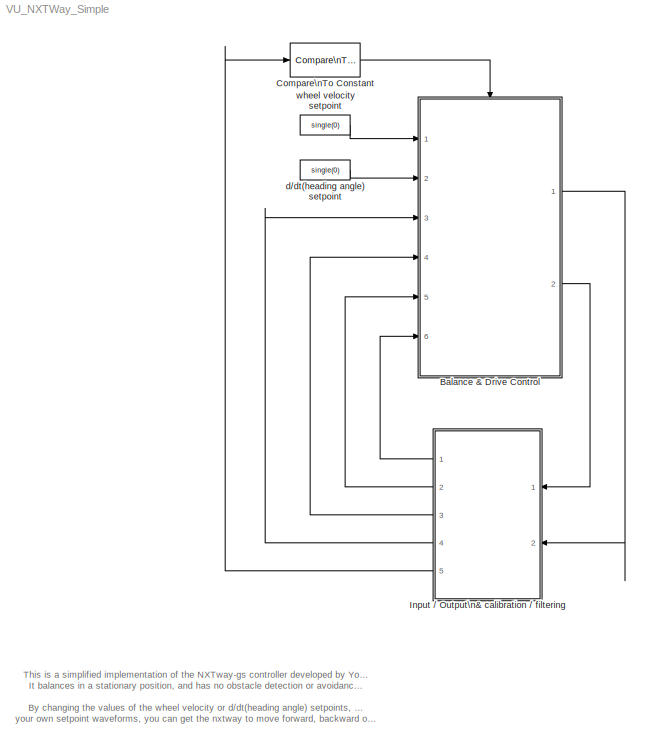
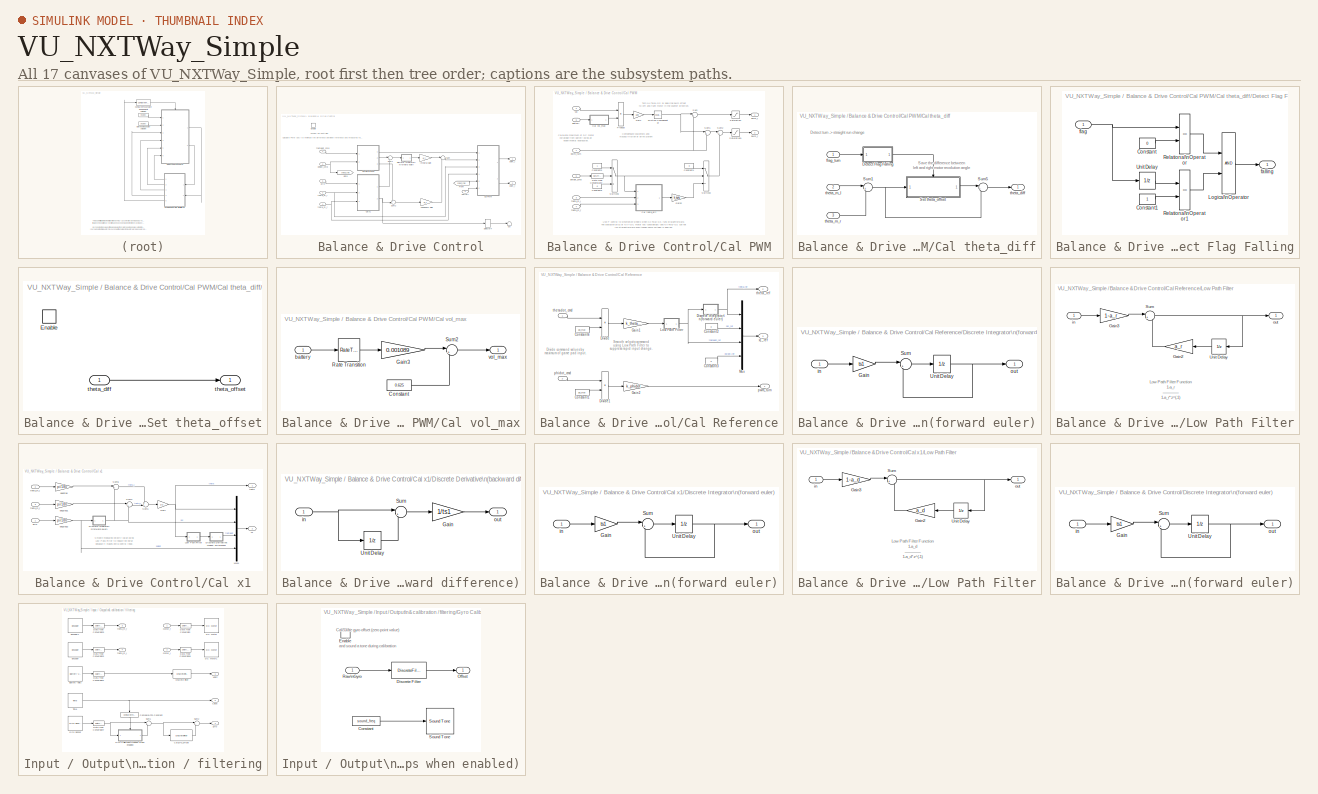
[diagram: thumbnail index - all 17 canvases of the model, root first then tree order]
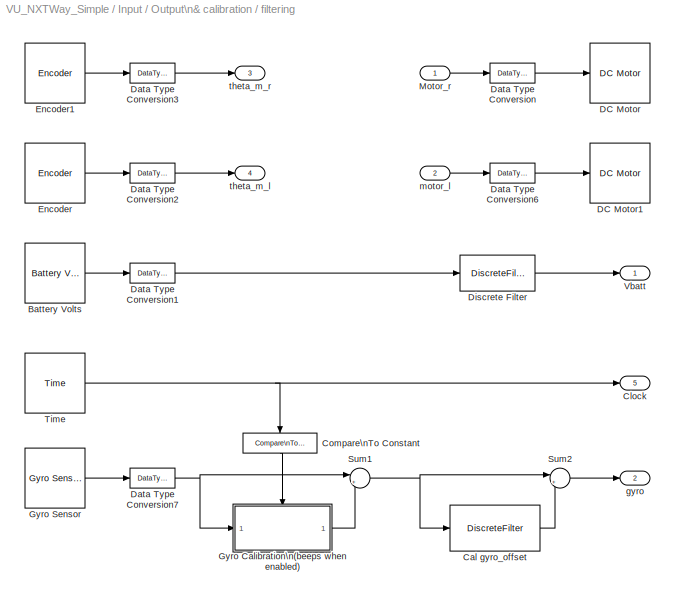
MODEL VU_NXTWay_Simple
KIND model
CONFIG PreLoadFcn = param_plant, param_controller
BLOCK [SubSystem] Balance & Drive Control
  FunctionWithSeparateData = off
  MaskHideContents = off
  MinAlgLoopOccurrences = off
  Opaque = off
  Ports = [6, 2, 1]
  PropExecContextOutsideSubsystem = off
  RTWSystemCode = Auto
  RequestExecContextInheritance = off
  SID = 1
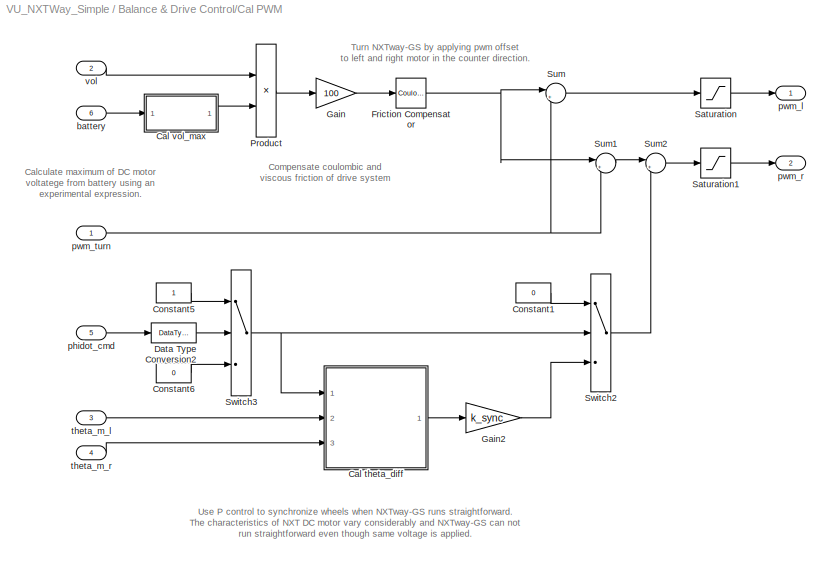
BLOCK [SubSystem] Balance & Drive Control/Cal PWM
  FunctionWithSeparateData = off
  MaskHideContents = off
  MinAlgLoopOccurrences = off
  Opaque = off
  Ports = [6, 2]
  PropExecContextOutsideSubsystem = off
  RTWSystemCode = Auto
  RequestExecContextInheritance = off
  SID = 514
BLOCK [SubSystem] Balance & Drive Control/Cal PWM/Cal theta_diff
  FunctionWithSeparateData = off
  MaskHideContents = off
  MinAlgLoopOccurrences = off
  Opaque = off
  Ports = [3, 1]
  PropExecContextOutsideSubsystem = off
  RTWSystemCode = Auto
  RequestExecContextInheritance = off
  SID = 521
BLOCK [SubSystem] Balance & Drive Control/Cal PWM/Cal theta_diff/Detect Flag Falling
  FunctionWithSeparateData = off
  MaskHideContents = off
  MinAlgLoopOccurrences = off
  Opaque = off
  Ports = [1, 1]
  PropExecContextOutsideSubsystem = off
  RTWSystemCode = Auto
  RequestExecContextInheritance = off
  SID = 525
BLOCK [Constant] Balance & Drive Control/Cal PWM/Cal theta_diff/Detect Flag Falling/Constant
  AttributesFormatString = DataType = %<OutDataTypeStr>
  OutDataType = FIXDT
  OutDataTypeMode = boolean
  OutDataTypeStr = boolean
  OutScaling = 2^0
  SID = 527
  SampleTime = ts1
  Value = 0
  VectorParams1D = off
BLOCK [Constant] Balance & Drive Control/Cal PWM/Cal theta_diff/Detect Flag Falling/Constant1
  AttributesFormatString = DataType = %<OutDataTypeStr>
  OutDataType = FIXDT
  OutDataTypeMode = boolean
  OutDataTypeStr = boolean
  OutScaling = 2^0
  SID = 528
  SampleTime = ts1
  VectorParams1D = off
BLOCK [Logic] Balance & Drive Control/Cal PWM/Cal theta_diff/Detect Flag Falling/Logical\nOperator
  AllPortsSameDT = off
  OutDataTypeMode = boolean
  OutDataTypeStr = boolean
  Ports = [2, 1]
  SID = 529
BLOCK [RelationalOperator] Balance & Drive Control/Cal PWM/Cal theta_diff/Detect Flag Falling/Relational\nOperator
  InputSameDT = off
  LogicOutDataTypeMode = boolean
  Operator = ==
  OutDataTypeStr = boolean
  Ports = [2, 1]
  SID = 530
BLOCK [RelationalOperator] Balance & Drive Control/Cal PWM/Cal theta_diff/Detect Flag Falling/Relational\nOperator1
  InputSameDT = off
  LogicOutDataTypeMode = boolean
  Operator = ==
  OutDataTypeStr = boolean
  Ports = [2, 1]
  SID = 531
BLOCK [UnitDelay] Balance & Drive Control/Cal PWM/Cal theta_diff/Detect Flag Falling/Unit Delay
  SID = 532
  SampleTime = -1
BLOCK [Outport] Balance & Drive Control/Cal PWM/Cal theta_diff/Detect Flag Falling/falling
  IconDisplay = Port number
  OutDataType = sfix(16)
  OutScaling = 2^0
  SID = 533
BLOCK [Inport] Balance & Drive Control/Cal PWM/Cal theta_diff/Detect Flag Falling/flag
  IconDisplay = Port number
  OutDataType = sfix(16)
  OutScaling = 2^0
  SID = 526
BLOCK [SubSystem] Balance & Drive Control/Cal PWM/Cal theta_diff/Set theta_offset
  FunctionWithSeparateData = off
  MaskHideContents = off
  MinAlgLoopOccurrences = off
  Opaque = off
  Ports = [1, 1, 1]
  PropExecContextOutsideSubsystem = off
  RTWSystemCode = Auto
  RequestExecContextInheritance = off
  SID = 534
BLOCK [EnablePort] Balance & Drive Control/Cal PWM/Cal theta_diff/Set theta_offset/Enable
  Ports = []
  SID = 536
BLOCK [Inport] Balance & Drive Control/Cal PWM/Cal theta_diff/Set theta_offset/theta_diff
  IconDisplay = Port number
  SID = 535
BLOCK [Outport] Balance & Drive Control/Cal PWM/Cal theta_diff/Set theta_offset/theta_offset
  IconDisplay = Port number
  SID = 537
BLOCK [Sum] Balance & Drive Control/Cal PWM/Cal theta_diff/Sum1
  IconShape = round
  InputSameDT = off
  Inputs = |+-
  OutDataType = sfix(16)
  OutScaling = 2^0
  Ports = [2, 1]
  SID = 538
  SaturateOnIntegerOverflow = off
BLOCK [Sum] Balance & Drive Control/Cal PWM/Cal theta_diff/Sum5
  IconShape = round
  InputSameDT = off
  Inputs = |-+
  OutDataType = sfix(16)
  OutScaling = 2^0
  Ports = [2, 1]
  SID = 539
  SaturateOnIntegerOverflow = off
BLOCK [Inport] Balance & Drive Control/Cal PWM/Cal theta_diff/flag_turn
  IconDisplay = Port number
  SID = 522
BLOCK [Outport] Balance & Drive Control/Cal PWM/Cal theta_diff/theta_diff
  IconDisplay = Port number
  SID = 540
BLOCK [Inport] Balance & Drive Control/Cal PWM/Cal theta_diff/theta_m_l
  IconDisplay = Port number
  Port = 2
  SID = 523
BLOCK [Inport] Balance & Drive Control/Cal PWM/Cal theta_diff/theta_m_r
  IconDisplay = Port number
  Port = 3
  SID = 524
BLOCK [SubSystem] Balance & Drive Control/Cal PWM/Cal vol_max
  FunctionWithSeparateData = off
  MaskHideContents = off
  MinAlgLoopOccurrences = off
  Opaque = off
  Ports = [1, 1]
  PropExecContextOutsideSubsystem = off
  RTWSystemCode = Auto
  RequestExecContextInheritance = off
  SID = 541
BLOCK [Constant] Balance & Drive Control/Cal PWM/Cal vol_max/Constant
  AttributesFormatString = DataType = %<OutDataTypeStr>
  OutDataType = sfix(16)
  OutDataTypeMode = single
  OutDataTypeStr = single
  OutScaling = 2^0
  SID = 543
  SampleTime = ts1
  Value = 0.625
BLOCK [Gain] Balance & Drive Control/Cal PWM/Cal vol_max/Gain3
  Gain = 0.001089
  OutDataType = sfix(16)
  OutScaling = 2^0
  ParameterDataType = sfix(16)
  ParameterScaling = 2^0
  SID = 544
  SampleTime = ts1
  SaturateOnIntegerOverflow = off
BLOCK [RateTransition] Balance & Drive Control/Cal PWM/Cal vol_max/Rate Transition
  OutPortSampleTimeOpt = Inherit
  SID = 644
BLOCK [Sum] Balance & Drive Control/Cal PWM/Cal vol_max/Sum2
  IconShape = round
  InputSameDT = off
  Inputs = |+-
  OutDataType = sfix(16)
  OutScaling = 2^0
  Ports = [2, 1]
  SID = 545
  SaturateOnIntegerOverflow = off
BLOCK [Inport] Balance & Drive Control/Cal PWM/Cal vol_max/battery
  IconDisplay = Port number
  SID = 542
BLOCK [Outport] Balance & Drive Control/Cal PWM/Cal vol_max/vol_max
  IconDisplay = Port number
  SID = 546
BLOCK [Constant] Balance & Drive Control/Cal PWM/Constant1
  AttributesFormatString = DataType = %<OutDataTypeStr>
  OutDataType = sfix(16)
  OutDataTypeMode = single
  OutDataTypeStr = single
  OutScaling = 2^0
  SID = 547
  SampleTime = ts1
  Value = 0
BLOCK [Constant] Balance & Drive Control/Cal PWM/Constant5
  AttributesFormatString = DataType = %<OutDataTypeStr>
  OutDataType = sfix(16)
  OutDataTypeMode = boolean
  OutDataTypeStr = boolean
  OutScaling = 2^0
  SID = 548
  SampleTime = ts1
BLOCK [Constant] Balance & Drive Control/Cal PWM/Constant6
  AttributesFormatString = DataType = %<OutDataTypeStr>
  OutDataType = sfix(16)
  OutDataTypeMode = boolean
  OutDataTypeStr = boolean
  OutScaling = 2^0
  SID = 549
  SampleTime = ts1
  Value = 0
BLOCK [DataTypeConversion] Balance & Drive Control/Cal PWM/Data Type Conversion2
  AttributesFormatString = Round = %<RndMeth>
  OutDataType = sfix(16)
  OutDataTypeMode = int8
  OutDataTypeStr = int8
  OutScaling = 2^0
  RndMeth = Simplest
  SID = 550
  SaturateOnIntegerOverflow = off
BLOCK [Reference] Balance & Drive Control/Cal PWM/Friction Compensator  REF=simulink/Discontinuities/Coulomb &\nViscous Friction
  AttributesFormatString = gain = %<gain>\\noffset = %<offset>
  FunctionWithSeparateData = off
  Ports = [1, 1]
  RTWMemSecDataConstants = Inherit from model
  RTWMemSecDataInternal = Inherit from model
  RTWMemSecDataParameters = Inherit from model
  RTWMemSecFuncExecute = Inherit from model
  RTWMemSecFuncInitTerm = Inherit from model
  SID = 551
  ShowPortLabels = FromPortIcon
  SourceBlock = simulink/Discontinuities/Coulomb &\nViscous Friction
  SourceType = Coulombic and Viscous Friction
  SystemSampleTime = -1
  gain = pwm_gain
  offset = pwm_offset
BLOCK [Gain] Balance & Drive Control/Cal PWM/Gain
  Gain = 100
  OutDataType = sfix(16)
  OutScaling = 2^0
  ParameterDataType = sfix(16)
  ParameterScaling = 2^0
  SID = 552
  SaturateOnIntegerOverflow = off
BLOCK [Gain] Balance & Drive Control/Cal PWM/Gain2
  Gain = k_sync
  OutDataType = sfix(16)
  OutScaling = 2^0
  ParameterDataType = sfix(16)
  ParameterScaling = 2^0
  SID = 553
  SaturateOnIntegerOverflow = off
BLOCK [Product] Balance & Drive Control/Cal PWM/Product
  InputSameDT = off
  Inputs = */
  OutDataType = sfix(16)
  OutScaling = 2^0
  Ports = [2, 1]
  RndMeth = Simplest
  SID = 554
  SaturateOnIntegerOverflow = off
BLOCK [Saturate] Balance & Drive Control/Cal PWM/Saturation
  AttributesFormatString = max = %<UpperLimit>\\nmin = %<LowerLimit>
  LowerLimit = -100
  Ports = [1, 1]
  SID = 555
  UpperLimit = 100
BLOCK [Saturate] Balance & Drive Control/Cal PWM/Saturation1
  AttributesFormatString = max = %<UpperLimit>\\nmin = %<LowerLimit>
  LowerLimit = -100
  Ports = [1, 1]
  SID = 556
  UpperLimit = 100
BLOCK [Sum] Balance & Drive Control/Cal PWM/Sum
  IconShape = round
  InputSameDT = off
  Inputs = |++
  OutDataType = sfix(16)
  OutScaling = 2^0
  Ports = [2, 1]
  SID = 557
  SaturateOnIntegerOverflow = off
BLOCK [Sum] Balance & Drive Control/Cal PWM/Sum1
  IconShape = round
  InputSameDT = off
  Inputs = |+-
  OutDataType = sfix(16)
  OutScaling = 2^0
  Ports = [2, 1]
  SID = 558
  SaturateOnIntegerOverflow = off
BLOCK [Sum] Balance & Drive Control/Cal PWM/Sum2
  IconShape = round
  InputSameDT = off
  Inputs = |++
  OutDataType = sfix(16)
  OutScaling = 2^0
  Ports = [2, 1]
  SID = 559
  SaturateOnIntegerOverflow = off
BLOCK [Switch] Balance & Drive Control/Cal PWM/Switch2
  Criteria = u2 ~= 0
  InputSameDT = off
  OutDataType = sfix(16)
  OutScaling = 2^0
  SID = 560
  SaturateOnIntegerOverflow = off
BLOCK [Switch] Balance & Drive Control/Cal PWM/Switch3
  Criteria = u2 ~= 0
  InputSameDT = off
  OutDataType = sfix(16)
  OutScaling = 2^0
  SID = 561
  SaturateOnIntegerOverflow = off
BLOCK [Inport] Balance & Drive Control/Cal PWM/battery
  IconDisplay = Port number
  OutDataType = sfix(16)
  OutScaling = 2^0
  Port = 6
  SID = 520
BLOCK [Inport] Balance & Drive Control/Cal PWM/phidot_cmd
  IconDisplay = Port number
  Port = 5
  SID = 519
BLOCK [Outport] Balance & Drive Control/Cal PWM/pwm_l
  IconDisplay = Port number
  OutDataType = sfix(16)
  OutScaling = 2^0
  SID = 562
BLOCK [Outport] Balance & Drive Control/Cal PWM/pwm_r
  IconDisplay = Port number
  OutDataType = sfix(16)
  OutScaling = 2^0
  Port = 2
  SID = 563
BLOCK [Inport] Balance & Drive Control/Cal PWM/pwm_turn
  IconDisplay = Port number
  SID = 515
BLOCK [Inport] Balance & Drive Control/Cal PWM/theta_m_l
  IconDisplay = Port number
  OutDataType = sfix(16)
  OutScaling = 2^0
  Port = 3
  SID = 517
BLOCK [Inport] Balance & Drive Control/Cal PWM/theta_m_r
  IconDisplay = Port number
  OutDataType = sfix(16)
  OutScaling = 2^0
  Port = 4
  SID = 518
BLOCK [Inport] Balance & Drive Control/Cal PWM/vol
  IconDisplay = Port number
  OutDataType = sfix(16)
  OutScaling = 2^0
  Port = 2
  SID = 516
BLOCK [SubSystem] Balance & Drive Control/Cal Reference
  FunctionWithSeparateData = off
  MaskHideContents = off
  MinAlgLoopOccurrences = off
  Opaque = off
  Ports = [2, 3]
  PropExecContextOutsideSubsystem = off
  RTWSystemCode = Auto
  RequestExecContextInheritance = off
  SID = 564
BLOCK [Constant] Balance & Drive Control/Cal Reference/Constant1
  AttributesFormatString = DataType = %<OutDataTypeStr>
  OutDataType = FIXDT
  OutDataTypeMode = int8
  OutDataTypeStr = int8
  OutScaling = 2^0
  SID = 567
  SampleTime = ts1
  Value = gp_max
  VectorParams1D = off
BLOCK [Constant] Balance & Drive Control/Cal Reference/Constant2
  AttributesFormatString = DataType = %<OutDataTypeStr>
  OutDataType = FIXDT
  OutDataTypeMode = single
  OutDataTypeStr = single
  OutScaling = 2^0
  SID = 568
  SampleTime = ts1
  Value = 0
  VectorParams1D = off
BLOCK [Constant] Balance & Drive Control/Cal Reference/Constant3
  AttributesFormatString = DataType = %<OutDataTypeStr>
  OutDataType = FIXDT
  OutDataTypeMode = single
  OutDataTypeStr = single
  OutScaling = 2^0
  SID = 569
  SampleTime = ts1
  Value = 0
  VectorParams1D = off
BLOCK [Constant] Balance & Drive Control/Cal Reference/Constant6
  AttributesFormatString = DataType = %<OutDataTypeStr>
  OutDataType = FIXDT
  OutDataTypeMode = int8
  OutDataTypeStr = int8
  OutScaling = 2^0
  SID = 570
  SampleTime = ts1
  Value = gp_max
  VectorParams1D = off
BLOCK [SubSystem] Balance & Drive Control/Cal Reference/Discrete Integrator\n(forward euler)
  FunctionWithSeparateData = off
  MaskHideContents = off
  MinAlgLoopOccurrences = off
  Opaque = off
  Ports = [1, 1]
  PropExecContextOutsideSubsystem = off
  RTWSystemCode = Auto
  RequestExecContextInheritance = off
  SID = 571
BLOCK [Gain] Balance & Drive Control/Cal Reference/Discrete Integrator\n(forward euler)/Gain
  Gain = ts1
  OutDataType = sfix(16)
  OutScaling = 2^0
  ParameterDataType = sfix(16)
  ParameterScaling = 2^0
  SID = 573
  SaturateOnIntegerOverflow = off
BLOCK [Sum] Balance & Drive Control/Cal Reference/Discrete Integrator\n(forward euler)/Sum
  IconShape = round
  InputSameDT = off
  Inputs = |++
  OutDataType = sfix(16)
  OutScaling = 2^0
  Ports = [2, 1]
  SID = 574
  SaturateOnIntegerOverflow = off
BLOCK [UnitDelay] Balance & Drive Control/Cal Reference/Discrete Integrator\n(forward euler)/Unit Delay
  SID = 575
  SampleTime = -1
BLOCK [Inport] Balance & Drive Control/Cal Reference/Discrete Integrator\n(forward euler)/in
  IconDisplay = Port number
  OutDataType = sfix(16)
  OutScaling = 2^0
  SID = 572
BLOCK [Outport] Balance & Drive Control/Cal Reference/Discrete Integrator\n(forward euler)/out
  IconDisplay = Port number
  OutDataType = sfix(16)
  OutScaling = 2^0
  SID = 576
BLOCK [Product] Balance & Drive Control/Cal Reference/Divide
  InputSameDT = off
  Inputs = */
  OutDataType = sfix(16)
  OutScaling = 2^-10
  Ports = [2, 1]
  RndMeth = Simplest
  SID = 577
  SaturateOnIntegerOverflow = off
BLOCK [Product] Balance & Drive Control/Cal Reference/Divide1
  InputSameDT = off
  Inputs = */
  OutDataType = sfix(16)
  OutScaling = 2^-10
  Ports = [2, 1]
  RndMeth = Simplest
  SID = 578
  SaturateOnIntegerOverflow = off
BLOCK [Gain] Balance & Drive Control/Cal Reference/Gain1
  Gain = k_thetadot
  OutDataType = sfix(16)
  OutScaling = 2^0
  ParameterDataType = sfix(16)
  ParameterScaling = 2^0
  SID = 579
  SaturateOnIntegerOverflow = off
BLOCK [Gain] Balance & Drive Control/Cal Reference/Gain2
  Gain = k_phidot
  OutDataType = sfix(16)
  OutScaling = 2^0
  ParameterDataType = sfix(16)
  ParameterScaling = 2^0
  SID = 580
  SaturateOnIntegerOverflow = off
BLOCK [SubSystem] Balance & Drive Control/Cal Reference/Low Path Filter
  FunctionWithSeparateData = off
  MaskHideContents = off
  MinAlgLoopOccurrences = off
  Opaque = off
  Ports = [1, 1]
  PropExecContextOutsideSubsystem = off
  RTWSystemCode = Auto
  RequestExecContextInheritance = off
  SID = 581
BLOCK [Gain] Balance & Drive Control/Cal Reference/Low Path Filter/Gain2
  Gain = a_r
  OutDataType = sfix(16)
  OutScaling = 2^0
  ParameterDataType = sfix(16)
  ParameterScaling = 2^0
  SID = 583
  SaturateOnIntegerOverflow = off
BLOCK [Gain] Balance & Drive Control/Cal Reference/Low Path Filter/Gain3
  Gain = 1-a_r
  OutDataType = sfix(16)
  OutScaling = 2^0
  ParameterDataType = sfix(16)
  ParameterScaling = 2^0
  SID = 584
  SaturateOnIntegerOverflow = off
BLOCK [Sum] Balance & Drive Control/Cal Reference/Low Path Filter/Sum
  IconShape = round
  InputSameDT = off
  Inputs = |++
  OutDataType = sfix(16)
  OutScaling = 2^0
  Ports = [2, 1]
  SID = 585
  SaturateOnIntegerOverflow = off
BLOCK [UnitDelay] Balance & Drive Control/Cal Reference/Low Path Filter/Unit Delay
  SID = 586
  SampleTime = -1
BLOCK [Inport] Balance & Drive Control/Cal Reference/Low Path Filter/in
  IconDisplay = Port number
  SID = 582
BLOCK [Outport] Balance & Drive Control/Cal Reference/Low Path Filter/out
  IconDisplay = Port number
  SID = 587
BLOCK [Mux] Balance & Drive Control/Cal Reference/Mux
  DisplayOption = bar
  Ports = [4, 1]
  SID = 588
BLOCK [Inport] Balance & Drive Control/Cal Reference/phidot_cmd
  IconDisplay = Port number
  Port = 2
  SID = 566
BLOCK [Outport] Balance & Drive Control/Cal Reference/pwm_turn
  IconDisplay = Port number
  SID = 589
BLOCK [Outport] Balance & Drive Control/Cal Reference/theta_ref
  IconDisplay = Port number
  Port = 2
  SID = 590
BLOCK [Inport] Balance & Drive Control/Cal Reference/thetadot_cmd
  IconDisplay = Port number
  SID = 565
BLOCK [Outport] Balance & Drive Control/Cal Reference/x1_ref
  IconDisplay = Port number
  Port = 3
  SID = 591
BLOCK [SubSystem] Balance & Drive Control/Cal x1
  FunctionWithSeparateData = off
  MaskHideContents = off
  MinAlgLoopOccurrences = off
  Opaque = off
  Ports = [3, 2]
  PropExecContextOutsideSubsystem = off
  RTWSystemCode = Auto
  RequestExecContextInheritance = off
  SID = 592
BLOCK [SubSystem] Balance & Drive Control/Cal x1/Discrete Derivative\n(backward difference)
  FunctionWithSeparateData = off
  MaskHideContents = off
  MinAlgLoopOccurrences = off
  Opaque = off
  Ports = [1, 1]
  PropExecContextOutsideSubsystem = off
  RTWSystemCode = Auto
  RequestExecContextInheritance = off
  SID = 596
BLOCK [Gain] Balance & Drive Control/Cal x1/Discrete Derivative\n(backward difference)/Gain
  Gain = 1/ts1
  OutDataType = sfix(16)
  OutScaling = 2^0
  ParameterDataType = sfix(16)
  ParameterScaling = 2^0
  SID = 598
  SaturateOnIntegerOverflow = off
BLOCK [Sum] Balance & Drive Control/Cal x1/Discrete Derivative\n(backward difference)/Sum
  IconShape = round
  InputSameDT = off
  Inputs = |+-
  OutDataType = sfix(16)
  OutScaling = 2^0
  Ports = [2, 1]
  SID = 599
  SaturateOnIntegerOverflow = off
BLOCK [UnitDelay] Balance & Drive Control/Cal x1/Discrete Derivative\n(backward difference)/Unit Delay
  SID = 600
  SampleTime = -1
BLOCK [Inport] Balance & Drive Control/Cal x1/Discrete Derivative\n(backward difference)/in
  IconDisplay = Port number
  OutDataType = sfix(16)
  OutScaling = 2^0
  SID = 597
BLOCK [Outport] Balance & Drive Control/Cal x1/Discrete Derivative\n(backward difference)/out
  IconDisplay = Port number
  OutDataType = sfix(16)
  OutScaling = 2^0
  SID = 601
BLOCK [SubSystem] Balance & Drive Control/Cal x1/Discrete Integrator\n(forward euler)
  FunctionWithSeparateData = off
  MaskHideContents = off
  MinAlgLoopOccurrences = off
  Opaque = off
  Ports = [1, 1]
  PropExecContextOutsideSubsystem = off
  RTWSystemCode = Auto
  RequestExecContextInheritance = off
  SID = 602
BLOCK [Gain] Balance & Drive Control/Cal x1/Discrete Integrator\n(forward euler)/Gain
  Gain = ts1
  OutDataType = sfix(16)
  OutScaling = 2^0
  ParameterDataType = sfix(16)
  ParameterScaling = 2^0
  SID = 604
  SaturateOnIntegerOverflow = off
BLOCK [Sum] Balance & Drive Control/Cal x1/Discrete Integrator\n(forward euler)/Sum
  IconShape = round
  InputSameDT = off
  Inputs = |++
  OutDataType = sfix(16)
  OutScaling = 2^0
  Ports = [2, 1]
  SID = 605
  SaturateOnIntegerOverflow = off
BLOCK [UnitDelay] Balance & Drive Control/Cal x1/Discrete Integrator\n(forward euler)/Unit Delay
  SID = 606
  SampleTime = -1
BLOCK [Inport] Balance & Drive Control/Cal x1/Discrete Integrator\n(forward euler)/in
  IconDisplay = Port number
  OutDataType = sfix(16)
  OutScaling = 2^0
  SID = 603
BLOCK [Outport] Balance & Drive Control/Cal x1/Discrete Integrator\n(forward euler)/out
  IconDisplay = Port number
  OutDataType = sfix(16)
  OutScaling = 2^0
  SID = 607
BLOCK [Gain] Balance & Drive Control/Cal x1/Gain
  Gain = 1/2
  OutDataType = sfix(16)
  OutScaling = 2^0
  ParameterDataType = sfix(16)
  ParameterScaling = 2^0
  SID = 608
  SaturateOnIntegerOverflow = off
BLOCK [SubSystem] Balance & Drive Control/Cal x1/Low Path Filter
  FunctionWithSeparateData = off
  MaskHideContents = off
  MinAlgLoopOccurrences = off
  Opaque = off
  Ports = [1, 1]
  PropExecContextOutsideSubsystem = off
  RTWSystemCode = Auto
  RequestExecContextInheritance = off
  SID = 609
BLOCK [Gain] Balance & Drive Control/Cal x1/Low Path Filter/Gain2
  Gain = a_d
  OutDataType = sfix(16)
  OutScaling = 2^0
  ParameterDataType = sfix(16)
  ParameterScaling = 2^0
  SID = 611
  SaturateOnIntegerOverflow = off
BLOCK [Gain] Balance & Drive Control/Cal x1/Low Path Filter/Gain3
  Gain = 1-a_d
  OutDataType = sfix(16)
  OutScaling = 2^0
  ParameterDataType = sfix(16)
  ParameterScaling = 2^0
  SID = 612
  SaturateOnIntegerOverflow = off
BLOCK [Sum] Balance & Drive Control/Cal x1/Low Path Filter/Sum
  IconShape = round
  InputSameDT = off
  Inputs = |++
  OutDataType = sfix(16)
  OutScaling = 2^0
  Ports = [2, 1]
  SID = 613
  SaturateOnIntegerOverflow = off
BLOCK [UnitDelay] Balance & Drive Control/Cal x1/Low Path Filter/Unit Delay
  SID = 614
  SampleTime = -1
BLOCK [Inport] Balance & Drive Control/Cal x1/Low Path Filter/in
  IconDisplay = Port number
  SID = 610
BLOCK [Outport] Balance & Drive Control/Cal x1/Low Path Filter/out
  IconDisplay = Port number
  SID = 615
BLOCK [Mux] Balance & Drive Control/Cal x1/Mux1
  DisplayOption = bar
  Ports = [4, 1]
  SID = 616
BLOCK [Sum] Balance & Drive Control/Cal x1/Sum1
  IconShape = round
  InputSameDT = off
  Inputs = ++|
  OutDataType = sfix(16)
  OutScaling = 2^0
  Ports = [2, 1]
  SID = 617
  SaturateOnIntegerOverflow = off
BLOCK [Sum] Balance & Drive Control/Cal x1/Sum4
  IconShape = round
  InputSameDT = off
  Inputs = |++
  OutDataType = sfix(16)
  OutScaling = 2^0
  Ports = [2, 1]
  SID = 618
  SaturateOnIntegerOverflow = off
BLOCK [Sum] Balance & Drive Control/Cal x1/Sum6
  IconShape = round
  InputSameDT = off
  Inputs = |++
  OutDataType = sfix(16)
  OutScaling = 2^0
  Ports = [2, 1]
  SID = 619
  SaturateOnIntegerOverflow = off
BLOCK [Gain] Balance & Drive Control/Cal x1/deg2rad
  Gain = pi/180
  OutDataType = sfix(16)
  OutScaling = 2^0
  ParameterDataType = sfix(16)
  ParameterScaling = 2^0
  SID = 620
  SaturateOnIntegerOverflow = off
BLOCK [Gain] Balance & Drive Control/Cal x1/deg2rad1
  Gain = pi/180
  OutDataType = sfix(16)
  OutScaling = 2^0
  ParameterDataType = sfix(16)
  ParameterScaling = 2^0
  SID = 621
  SaturateOnIntegerOverflow = off
BLOCK [Gain] Balance & Drive Control/Cal x1/deg2rad2
  Gain = pi/180
  OutDataType = sfix(16)
  OutScaling = 2^0
  ParameterDataType = sfix(16)
  ParameterScaling = 2^0
  SID = 622
  SaturateOnIntegerOverflow = off
BLOCK [Inport] Balance & Drive Control/Cal x1/gyro
  IconDisplay = Port number
  OutDataType = sfix(16)
  OutScaling = 2^0
  SID = 593
BLOCK [Outport] Balance & Drive Control/Cal x1/theta
  IconDisplay = Port number
  OutDataType = sfix(16)
  OutScaling = 2^0
  SID = 623
BLOCK [Inport] Balance & Drive Control/Cal x1/theta_m_l
  IconDisplay = Port number
  OutDataType = sfix(16)
  OutScaling = 2^0
  Port = 2
  SID = 594
BLOCK [Inport] Balance & Drive Control/Cal x1/theta_m_r
  IconDisplay = Port number
  OutDataType = sfix(16)
  OutScaling = 2^0
  Port = 3
  SID = 595
BLOCK [Outport] Balance & Drive Control/Cal x1/x1
  IconDisplay = Port number
  OutDataType = sfix(16)
  OutScaling = 2^0
  Port = 2
  SID = 624
BLOCK [SubSystem] Balance & Drive Control/Discrete Integrator\n(forward euler)
  FunctionWithSeparateData = off
  MaskHideContents = off
  MinAlgLoopOccurrences = off
  Opaque = off
  Ports = [1, 1]
  PropExecContextOutsideSubsystem = off
  RTWSystemCode = Auto
  RequestExecContextInheritance = off
  SID = 625
BLOCK [Gain] Balance & Drive Control/Discrete Integrator\n(forward euler)/Gain
  Gain = ts1
  OutDataType = sfix(16)
  OutScaling = 2^0
  ParameterDataType = sfix(16)
  ParameterScaling = 2^0
  SID = 627
  SaturateOnIntegerOverflow = off
BLOCK [Sum] Balance & Drive Control/Discrete Integrator\n(forward euler)/Sum
  IconShape = round
  InputSameDT = off
  Inputs = |++
  OutDataType = sfix(16)
  OutScaling = 2^0
  Ports = [2, 1]
  SID = 628
  SaturateOnIntegerOverflow = off
BLOCK [UnitDelay] Balance & Drive Control/Discrete Integrator\n(forward euler)/Unit Delay
  SID = 629
  SampleTime = -1
BLOCK [Inport] Balance & Drive Control/Discrete Integrator\n(forward euler)/in
  IconDisplay = Port number
  OutDataType = sfix(16)
  OutScaling = 2^0
  SID = 626
BLOCK [Outport] Balance & Drive Control/Discrete Integrator\n(forward euler)/out
  IconDisplay = Port number
  OutDataType = sfix(16)
  OutScaling = 2^0
  SID = 630
BLOCK [EnablePort] Balance & Drive Control/Enable
  Ports = []
  SID = 2
BLOCK [Gain] Balance & Drive Control/Feedback Gain
  Gain = k_f
  Multiplication = Matrix(K*u)
  OutDataType = sfix(16)
  OutScaling = 2^0
  ParameterDataType = sfix(16)
  ParameterScaling = 2^0
  SID = 631
  SaturateOnIntegerOverflow = off
BLOCK [From] Balance & Drive Control/From
  CloseFcn = tagdialog Close
  GotoTag = phidot_cmd
  SID = 632
BLOCK [Goto] Balance & Drive Control/Goto
  GotoTag = phidot_cmd
  SID = 633
  TagVisibility = local
BLOCK [Gain] Balance & Drive Control/Integral Gain
  Gain = k_i
  Multiplication = Matrix(K*u)
  OutDataType = sfix(16)
  OutScaling = 2^0
  ParameterDataType = sfix(16)
  ParameterScaling = 2^0
  SID = 634
  SaturateOnIntegerOverflow = off
BLOCK [Selector] Balance & Drive Control/Selector4
  IndexOptions = Index vector (dialog)
  Indices = 2
  InputPortWidth = 4
  OutputSizes = 1
  Ports = [1, 1]
  SID = 635
BLOCK [Sum] Balance & Drive Control/Sum
  IconShape = round
  InputSameDT = off
  Inputs = |++
  OutDataType = sfix(16)
  OutScaling = 2^0
  Ports = [2, 1]
  SID = 636
  SaturateOnIntegerOverflow = off
BLOCK [Sum] Balance & Drive Control/Sum1
  IconShape = round
  InputSameDT = off
  Inputs = |+-
  OutDataType = sfix(16)
  OutScaling = 2^0
  Ports = [2, 1]
  SID = 637
  SaturateOnIntegerOverflow = off
BLOCK [Sum] Balance & Drive Control/Sum2
  IconShape = round
  InputSameDT = off
  Inputs = +-|
  OutDataType = sfix(16)
  OutScaling = 2^0
  Ports = [2, 1]
  SID = 638
  SaturateOnIntegerOverflow = off
BLOCK [Inport] Balance & Drive Control/battery
  IconDisplay = Port number
  Port = 6
  SID = 513
BLOCK [Inport] Balance & Drive Control/gyro
  IconDisplay = Port number
  Port = 5
  SID = 512
BLOCK [Inport] Balance & Drive Control/phidot_cmd
  IconDisplay = Port number
  Port = 2
  SID = 509
BLOCK [Terminator] Balance & Drive Control/psi
  SID = 642
BLOCK [Outport] Balance & Drive Control/pwm_l
  IconDisplay = Port number
  SID = 639
BLOCK [Outport] Balance & Drive Control/pwm_r
  IconDisplay = Port number
  Port = 2
  SID = 640
BLOCK [Inport] Balance & Drive Control/theta_m_l
  IconDisplay = Port number
  Port = 3
  SID = 510
BLOCK [Inport] Balance & Drive Control/theta_m_r
  IconDisplay = Port number
  Port = 4
  SID = 511
BLOCK [Inport] Balance & Drive Control/thetadot_cmd
  IconDisplay = Port number
  SID = 508
BLOCK [Reference] Compare\nTo Constant  REF=simulink/Logic and Bit\nOperations/Compare\nTo Constant
  FunctionWithSeparateData = off
  LogicOutDataTypeMode = boolean
  Ports = [1, 1]
  RTWMemSecDataConstants = Inherit from model
  RTWMemSecDataInternal = Inherit from model
  RTWMemSecDataParameters = Inherit from model
  RTWMemSecFuncExecute = Inherit from model
  RTWMemSecFuncInitTerm = Inherit from model
  SID = 487
  ShowPortLabels = FromPortIcon
  SourceBlock = simulink/Logic and Bit\nOperations/Compare\nTo Constant
  SourceType = Compare To Constant
  SystemSampleTime = -1
  ZeroCross = on
  const = time_start
  relop = >=
BLOCK [SubSystem] Input // Output\n& calibration // filtering
  FunctionWithSeparateData = off
  MaskHideContents = off
  MinAlgLoopOccurrences = off
  Opaque = off
  Ports = [2, 5]
  PropExecContextOutsideSubsystem = off
  RTWSystemCode = Auto
  RequestExecContextInheritance = off
  SID = 341
BLOCK [Reference] Input // Output\n& calibration // filtering/Battery Volts  REF=lego_nxt_lib/Battery Volts  (lib defined in mdl_3d9a4c0387f8)
  Ports = [0, 1]
  SID = 457
  SourceBlock = lego_nxt_lib/Battery Volts
  SourceType = Battery Voltage
  st = ts3
BLOCK [DiscreteFilter] Input // Output\n& calibration // filtering/Cal gyro_offset
  Denominator = [1 -a_gd]
  Numerator = [1-a_gd]
  Ports = [1, 1]
  SID = 476
BLOCK [Outport] Input // Output\n& calibration // filtering/Clock
  IconDisplay = Port number
  Port = 5
  SID = 364
BLOCK [Reference] Input // Output\n& calibration // filtering/Compare\nTo Constant  REF=simulink/Logic and Bit\nOperations/Compare\nTo Constant
  FunctionWithSeparateData = off
  LogicOutDataTypeMode = boolean
  Ports = [1, 1]
  RTWMemSecDataConstants = Inherit from model
  RTWMemSecDataInternal = Inherit from model
  RTWMemSecDataParameters = Inherit from model
  RTWMemSecFuncExecute = Inherit from model
  RTWMemSecFuncInitTerm = Inherit from model
  SID = 501
  ShowPortLabels = FromPortIcon
  SourceBlock = simulink/Logic and Bit\nOperations/Compare\nTo Constant
  SourceType = Compare To Constant
  SystemSampleTime = -1
  ZeroCross = on
  const = time_start
  relop = <
BLOCK [Reference] Input // Output\n& calibration // filtering/DC Motor  REF=lego_nxt_lib/DC Motor  (lib defined in mdl_3d9a4c0387f8)
  Ports = [1]
  SID = 459
  SourceBlock = lego_nxt_lib/DC Motor
  SourceType = Servo Motor (Simple)
  brake = Brake
  port = Port C
BLOCK [Reference] Input // Output\n& calibration // filtering/DC Motor1  REF=lego_nxt_lib/DC Motor  (lib defined in mdl_3d9a4c0387f8)
  Ports = [1]
  SID = 460
  SourceBlock = lego_nxt_lib/DC Motor
  SourceType = Servo Motor (Simple)
  brake = Brake
  port = Port B
BLOCK [DataTypeConversion] Input // Output\n& calibration // filtering/Data Type Conversion
  AttributesFormatString = Round = %<RndMeth>
  OutDataType = sfix(16)
  OutDataTypeMode = int8
  OutDataTypeStr = int8
  OutScaling = 2^0
  RndMeth = Simplest
  SID = 506
  SaturateOnIntegerOverflow = off
BLOCK [DataTypeConversion] Input // Output\n& calibration // filtering/Data Type Conversion1
  AttributesFormatString = Round = %<RndMeth>
  OutDataType = sfix(16)
  OutDataTypeMode = single
  OutDataTypeStr = single
  OutScaling = 2^0
  RndMeth = Simplest
  SID = 467
  SaturateOnIntegerOverflow = off
BLOCK [DataTypeConversion] Input // Output\n& calibration // filtering/Data Type Conversion2
  AttributesFormatString = Round = %<RndMeth>
  OutDataType = sfix(16)
  OutDataTypeMode = single
  OutDataTypeStr = single
  OutScaling = 2^0
  RndMeth = Simplest
  SID = 504
  SaturateOnIntegerOverflow = off
BLOCK [DataTypeConversion] Input // Output\n& calibration // filtering/Data Type Conversion3
  AttributesFormatString = Round = %<RndMeth>
  OutDataType = sfix(16)
  OutDataTypeMode = single
  OutDataTypeStr = single
  OutScaling = 2^0
  RndMeth = Simplest
  SID = 505
  SaturateOnIntegerOverflow = off
BLOCK [DataTypeConversion] Input // Output\n& calibration // filtering/Data Type Conversion6
  AttributesFormatString = Round = %<RndMeth>
  OutDataType = sfix(16)
  OutDataTypeMode = int8
  OutDataTypeStr = int8
  OutScaling = 2^0
  RndMeth = Simplest
  SID = 507
  SaturateOnIntegerOverflow = off
BLOCK [DataTypeConversion] Input // Output\n& calibration // filtering/Data Type Conversion7
  AttributesFormatString = Round = %<RndMeth>
  OutDataType = sfix(16)
  OutDataTypeMode = single
  OutDataTypeStr = single
  OutScaling = 2^0
  RndMeth = Simplest
  SID = 462
  SaturateOnIntegerOverflow = off
BLOCK [DiscreteFilter] Input // Output\n& calibration // filtering/Discrete Filter
  Denominator = [1 -a_b]
  Numerator = [1-a_b]
  Ports = [1, 1]
  SID = 466
BLOCK [Reference] Input // Output\n& calibration // filtering/Encoder  REF=lego_nxt_lib/Encoder  (lib defined in mdl_3d9a4c0387f8)
  Ports = [0, 1]
  SID = 455
  SourceBlock = lego_nxt_lib/Encoder
  SourceType = Encoder
  port = Port B
  st = ts1
BLOCK [Reference] Input // Output\n& calibration // filtering/Encoder1  REF=lego_nxt_lib/Encoder  (lib defined in mdl_3d9a4c0387f8)
  Ports = [0, 1]
  SID = 456
  SourceBlock = lego_nxt_lib/Encoder
  SourceType = Encoder
  port = Port C
  st = ts1
BLOCK [SubSystem] Input // Output\n& calibration // filtering/Gyro Calibration\n(beeps when enabled)
  FunctionWithSeparateData = off
  MaskHideContents = off
  MinAlgLoopOccurrences = off
  Opaque = off
  Ports = [1, 1, 1]
  PropExecContextOutsideSubsystem = off
  RTWSystemCode = Auto
  RequestExecContextInheritance = off
  SID = 489
  TreatAsAtomicUnit = on
BLOCK [Constant] Input // Output\n& calibration // filtering/Gyro Calibration\n(beeps when enabled)/Constant
  AttributesFormatString = DataType = %<OutDataTypeStr>
  OutDataType = sfix(16)
  OutDataTypeMode = uint32
  OutDataTypeStr = uint32
  OutScaling = 2^0
  SID = 499
  SampleTime = 0.2
  Value = sound_freq
BLOCK [DiscreteFilter] Input // Output\n& calibration // filtering/Gyro Calibration\n(beeps when enabled)/Discrete Filter
  Denominator = [1 -a_gc]
  Numerator = [1-a_gc]
  Ports = [1, 1]
  SID = 492
BLOCK [EnablePort] Input // Output\n& calibration // filtering/Gyro Calibration\n(beeps when enabled)/Enable
  Ports = []
  SID = 491
BLOCK [Outport] Input // Output\n& calibration // filtering/Gyro Calibration\n(beeps when enabled)/Offset
  IconDisplay = Port number
  OutDataType = fixdt(1, 16)
  OutScaling = 2^0
  SID = 493
BLOCK [Inport] Input // Output\n& calibration // filtering/Gyro Calibration\n(beeps when enabled)/Raw\nGyro
  IconDisplay = Port number
  OutDataType = fixdt(1, 16)
  OutScaling = 2^0
  SID = 490
BLOCK [Reference] Input // Output\n& calibration // filtering/Gyro Calibration\n(beeps when enabled)/Sound Tone  REF=lego_nxt_lib/Sound Tone  (lib defined in mdl_3d9a4c0387f8)
  FunctionWithSeparateData = off
  Ports = [1]
  RTWMemSecDataConstants = Inherit from model
  RTWMemSecDataInternal = Inherit from model
  RTWMemSecDataParameters = Inherit from model
  RTWMemSecFuncExecute = Inherit from model
  RTWMemSecFuncInitTerm = Inherit from model
  SID = 500
  ShowPortLabels = FromPortIcon
  SourceBlock = lego_nxt_lib/Sound Tone
  SourceType = Sound Tone
  SystemSampleTime = -1
  freq = 0
  freqsrc = External
  vol = 20
  volsrc = Internal
BLOCK [Reference] Input // Output\n& calibration // filtering/Gyro Sensor  REF=lego_nxt_lib/Gyro Sensor  (lib defined in mdl_3d9a4c0387f8)
  Ports = [0, 1]
  SID = 454
  SourceBlock = lego_nxt_lib/Gyro Sensor
  SourceType = HiTechnic Gyroscopic Sensor
  port = Port 3
  st = ts1
BLOCK [Inport] Input // Output\n& calibration // filtering/Motor_r
  IconDisplay = Port number
  SID = 347
BLOCK [Sum] Input // Output\n& calibration // filtering/Sum1
  IconShape = round
  InputSameDT = off
  Inputs = |+-
  OutDataType = sfix(16)
  OutScaling = 2^0
  Ports = [2, 1]
  SID = 503
  SaturateOnIntegerOverflow = off
BLOCK [Sum] Input // Output\n& calibration // filtering/Sum2
  IconShape = round
  InputSameDT = off
  Inputs = |+-
  OutDataType = sfix(16)
  OutScaling = 2^0
  Ports = [2, 1]
  SID = 477
  SaturateOnIntegerOverflow = off
BLOCK [Reference] Input // Output\n& calibration // filtering/Time  REF=lego_nxt_lib/Time  (lib defined in mdl_3d9a4c0387f8)
  Ports = [0, 1]
  SID = 458
  SourceBlock = lego_nxt_lib/Time
  SourceType = System Clock
  st = ts1
BLOCK [Outport] Input // Output\n& calibration // filtering/Vbatt
  IconDisplay = Port number
  SID = 346
BLOCK [Outport] Input // Output\n& calibration // filtering/gyro
  IconDisplay = Port number
  Port = 2
  SID = 342
BLOCK [Inport] Input // Output\n& calibration // filtering/motor_l
  IconDisplay = Port number
  Port = 2
  SID = 348
BLOCK [Outport] Input // Output\n& calibration // filtering/theta_m_l
  IconDisplay = Port number
  Port = 4
  SID = 344
BLOCK [Outport] Input // Output\n& calibration // filtering/theta_m_r
  IconDisplay = Port number
  Port = 3
  SID = 345
BLOCK [Constant] d//dt(heading angle) setpoint
  OutDataType = fixdt(1, 16)
  OutScaling = 2^0
  SID = 486
  SampleTime = ts1
  Value = single(0)
BLOCK [Constant] wheel velocity setpoint
  OutDataType = fixdt(1, 16)
  OutScaling = 2^0
  SID = 646
  SampleTime = ts1
  Value = single(0)
ANNOTATION (root): This is a simplified implementation of the NXTway-gs controller developed by Yorihisa Yamamoto\nIt balances in a stationary position, and has no obstacle detection or avoidance. \n\nBy changing the values of the wheel velocity or d/dt(heading angle) setpoints, or by generating\nyour own setpoint waveforms, you can get the nxtway to move forward, backward or turn as desired.
ANNOTATION Balance & Drive Control: Calculate PWM duty to minimize the difference between reference and measured value.
ANNOTATION Balance & Drive Control: NXTway-GS Controller
ANNOTATION Balance & Drive Control/Cal PWM: Calculate maximum of DC motor\nvoltatege from battery using an\nexperimental expression.
ANNOTATION Balance & Drive Control/Cal PWM: Compensate coulombic and\nviscous friction of drive system
ANNOTATION Balance & Drive Control/Cal PWM: Turn NXTway-GS by applying pwm offset\nto left and right motor in the counter direction.
ANNOTATION Balance & Drive Control/Cal PWM: Use P control to synchronize wheels when NXTway-GS runs straightforward.\nThe characteristics of NXT DC motor vary considerably and NXTway-GS can not\nrun straightforward even though same voltage is applied.
ANNOTATION Balance & Drive Control/Cal PWM/Cal theta_diff: Detect turn -> straight run change
ANNOTATION Balance & Drive Control/Cal PWM/Cal theta_diff: Save the difference between\nleft and right motor revolution angle
ANNOTATION Balance & Drive Control/Cal Reference: Divide command values by\nmaximum of game pad input.
ANNOTATION Balance & Drive Control/Cal Reference: Smooth velocity command\nusing Low Path Filter to\nsuppress rapid input change.
ANNOTATION Balance & Drive Control/Cal Reference/Low Path Filter: Low Path Filter Function \n 1-a_r\n ----------------\n 1-a_r*z^(-1)
ANNOTATION Balance & Drive Control/Cal x1: Smooth measured velocity value using\nLow Pass Filter to reduce the noise\nbecause it makes extra control input.
ANNOTATION Balance & Drive Control/Cal x1/Low Path Filter: Low Path Filter Function \n 1-a_d\n ----------------\n 1-a_d*z^(-1)
ANNOTATION Input // Output\n& calibration // filtering/Gyro Calibration\n(beeps when enabled): Calculate gyro offset (zero point value)\nand sound a tone during calibration
LINE Balance & Drive Control/Cal PWM/Cal theta_diff/Detect Flag Falling/Constant1:1 -> Balance & Drive Control/Cal PWM/Cal theta_diff/Detect Flag Falling/Relational\nOperator1:2
LINE Balance & Drive Control/Cal PWM/Cal theta_diff/Detect Flag Falling/Constant:1 -> Balance & Drive Control/Cal PWM/Cal theta_diff/Detect Flag Falling/Relational\nOperator:2
LINE Balance & Drive Control/Cal PWM/Cal theta_diff/Detect Flag Falling/Logical\nOperator:1 -> Balance & Drive Control/Cal PWM/Cal theta_diff/Detect Flag Falling/falling:1
LINE Balance & Drive Control/Cal PWM/Cal theta_diff/Detect Flag Falling/Relational\nOperator1:1 -> Balance & Drive Control/Cal PWM/Cal theta_diff/Detect Flag Falling/Logical\nOperator:2
LINE Balance & Drive Control/Cal PWM/Cal theta_diff/Detect Flag Falling/Relational\nOperator:1 -> Balance & Drive Control/Cal PWM/Cal theta_diff/Detect Flag Falling/Logical\nOperator:1
LINE Balance & Drive Control/Cal PWM/Cal theta_diff/Detect Flag Falling/Unit Delay:1 -> Balance & Drive Control/Cal PWM/Cal theta_diff/Detect Flag Falling/Relational\nOperator1:1
NET Balance & Drive Control/Cal PWM/Cal theta_diff/Detect Flag Falling/flag:1 -> Balance & Drive Control/Cal PWM/Cal theta_diff/Detect Flag Falling/Relational\nOperator:1, Balance & Drive Control/Cal PWM/Cal theta_diff/Detect Flag Falling/Unit Delay:1
LINE Balance & Drive Control/Cal PWM/Cal theta_diff/Detect Flag Falling:1 -> Balance & Drive Control/Cal PWM/Cal theta_diff/Set theta_offset:enable
LINE Balance & Drive Control/Cal PWM/Cal theta_diff/Set theta_offset/theta_diff:1 -> Balance & Drive Control/Cal PWM/Cal theta_diff/Set theta_offset/theta_offset:1
LINE Balance & Drive Control/Cal PWM/Cal theta_diff/Set theta_offset:1 -> Balance & Drive Control/Cal PWM/Cal theta_diff/Sum5:1
NET Balance & Drive Control/Cal PWM/Cal theta_diff/Sum1:1 -> Balance & Drive Control/Cal PWM/Cal theta_diff/Set theta_offset:1, Balance & Drive Control/Cal PWM/Cal theta_diff/Sum5:2
LINE Balance & Drive Control/Cal PWM/Cal theta_diff/Sum5:1 -> Balance & Drive Control/Cal PWM/Cal theta_diff/theta_diff:1
LINE Balance & Drive Control/Cal PWM/Cal theta_diff/flag_turn:1 -> Balance & Drive Control/Cal PWM/Cal theta_diff/Detect Flag Falling:1
LINE Balance & Drive Control/Cal PWM/Cal theta_diff/theta_m_l:1 -> Balance & Drive Control/Cal PWM/Cal theta_diff/Sum1:1
LINE Balance & Drive Control/Cal PWM/Cal theta_diff/theta_m_r:1 -> Balance & Drive Control/Cal PWM/Cal theta_diff/Sum1:2
LINE Balance & Drive Control/Cal PWM/Cal theta_diff:1 -> Balance & Drive Control/Cal PWM/Gain2:1
LINE Balance & Drive Control/Cal PWM/Cal vol_max/Constant:1 -> Balance & Drive Control/Cal PWM/Cal vol_max/Sum2:2
LINE Balance & Drive Control/Cal PWM/Cal vol_max/Gain3:1 -> Balance & Drive Control/Cal PWM/Cal vol_max/Sum2:1
LINE Balance & Drive Control/Cal PWM/Cal vol_max/Rate Transition:1 -> Balance & Drive Control/Cal PWM/Cal vol_max/Gain3:1
LINE Balance & Drive Control/Cal PWM/Cal vol_max/Sum2:1 -> Balance & Drive Control/Cal PWM/Cal vol_max/vol_max:1
LINE Balance & Drive Control/Cal PWM/Cal vol_max/battery:1 -> Balance & Drive Control/Cal PWM/Cal vol_max/Rate Transition:1
LINE Balance & Drive Control/Cal PWM/Cal vol_max:1 -> Balance & Drive Control/Cal PWM/Product:2
LINE Balance & Drive Control/Cal PWM/Constant1:1 -> Balance & Drive Control/Cal PWM/Switch2:1
LINE Balance & Drive Control/Cal PWM/Constant5:1 -> Balance & Drive Control/Cal PWM/Switch3:1
LINE Balance & Drive Control/Cal PWM/Constant6:1 -> Balance & Drive Control/Cal PWM/Switch3:3
LINE Balance & Drive Control/Cal PWM/Data Type Conversion2:1 -> Balance & Drive Control/Cal PWM/Switch3:2
NET Balance & Drive Control/Cal PWM/Friction Compensator:1 -> Balance & Drive Control/Cal PWM/Sum1:1, Balance & Drive Control/Cal PWM/Sum:1
LINE Balance & Drive Control/Cal PWM/Gain2:1 -> Balance & Drive Control/Cal PWM/Switch2:3
LINE Balance & Drive Control/Cal PWM/Gain:1 -> Balance & Drive Control/Cal PWM/Friction Compensator:1
LINE Balance & Drive Control/Cal PWM/Product:1 -> Balance & Drive Control/Cal PWM/Gain:1
LINE Balance & Drive Control/Cal PWM/Saturation1:1 -> Balance & Drive Control/Cal PWM/pwm_r:1
LINE Balance & Drive Control/Cal PWM/Saturation:1 -> Balance & Drive Control/Cal PWM/pwm_l:1
LINE Balance & Drive Control/Cal PWM/Sum1:1 -> Balance & Drive Control/Cal PWM/Sum2:1
LINE Balance & Drive Control/Cal PWM/Sum2:1 -> Balance & Drive Control/Cal PWM/Saturation1:1
LINE Balance & Drive Control/Cal PWM/Sum:1 -> Balance & Drive Control/Cal PWM/Saturation:1
LINE Balance & Drive Control/Cal PWM/Switch2:1 -> Balance & Drive Control/Cal PWM/Sum2:2
NET Balance & Drive Control/Cal PWM/Switch3:1 -> Balance & Drive Control/Cal PWM/Cal theta_diff:1, Balance & Drive Control/Cal PWM/Switch2:2
LINE Balance & Drive Control/Cal PWM/battery:1 -> Balance & Drive Control/Cal PWM/Cal vol_max:1
LINE Balance & Drive Control/Cal PWM/phidot_cmd:1 -> Balance & Drive Control/Cal PWM/Data Type Conversion2:1
NET Balance & Drive Control/Cal PWM/pwm_turn:1 -> Balance & Drive Control/Cal PWM/Sum1:2, Balance & Drive Control/Cal PWM/Sum:2
LINE Balance & Drive Control/Cal PWM/theta_m_l:1 -> Balance & Drive Control/Cal PWM/Cal theta_diff:2
LINE Balance & Drive Control/Cal PWM/theta_m_r:1 -> Balance & Drive Control/Cal PWM/Cal theta_diff:3
LINE Balance & Drive Control/Cal PWM/vol:1 -> Balance & Drive Control/Cal PWM/Product:1
LINE Balance & Drive Control/Cal PWM:1 -> Balance & Drive Control/pwm_l:1
LINE Balance & Drive Control/Cal PWM:2 -> Balance & Drive Control/pwm_r:1
LINE Balance & Drive Control/Cal Reference/Constant1:1 -> Balance & Drive Control/Cal Reference/Divide1:2
LINE Balance & Drive Control/Cal Reference/Constant2:1 -> Balance & Drive Control/Cal Reference/Mux:2
LINE Balance & Drive Control/Cal Reference/Constant3:1 -> Balance & Drive Control/Cal Reference/Mux:4
LINE Balance & Drive Control/Cal Reference/Constant6:1 -> Balance & Drive Control/Cal Reference/Divide:2
LINE Balance & Drive Control/Cal Reference/Discrete Integrator\n(forward euler)/Gain:1 -> Balance & Drive Control/Cal Reference/Discrete Integrator\n(forward euler)/Sum:1
LINE Balance & Drive Control/Cal Reference/Discrete Integrator\n(forward euler)/Sum:1 -> Balance & Drive Control/Cal Reference/Discrete Integrator\n(forward euler)/Unit Delay:1
NET Balance & Drive Control/Cal Reference/Discrete Integrator\n(forward euler)/Unit Delay:1 -> Balance & Drive Control/Cal Reference/Discrete Integrator\n(forward euler)/Sum:2, Balance & Drive Control/Cal Reference/Discrete Integrator\n(forward euler)/out:1
LINE Balance & Drive Control/Cal Reference/Discrete Integrator\n(forward euler)/in:1 -> Balance & Drive Control/Cal Reference/Discrete Integrator\n(forward euler)/Gain:1
NET Balance & Drive Control/Cal Reference/Discrete Integrator\n(forward euler):1 -> Balance & Drive Control/Cal Reference/Mux:1, Balance & Drive Control/Cal Reference/theta_ref:1
LINE Balance & Drive Control/Cal Reference/Divide1:1 -> Balance & Drive Control/Cal Reference/Gain2:1
LINE Balance & Drive Control/Cal Reference/Divide:1 -> Balance & Drive Control/Cal Reference/Gain1:1
LINE Balance & Drive Control/Cal Reference/Gain1:1 -> Balance & Drive Control/Cal Reference/Low Path Filter:1
LINE Balance & Drive Control/Cal Reference/Gain2:1 -> Balance & Drive Control/Cal Reference/pwm_turn:1
LINE Balance & Drive Control/Cal Reference/Low Path Filter/Gain2:1 -> Balance & Drive Control/Cal Reference/Low Path Filter/Sum:2
LINE Balance & Drive Control/Cal Reference/Low Path Filter/Gain3:1 -> Balance & Drive Control/Cal Reference/Low Path Filter/Sum:1
NET Balance & Drive Control/Cal Reference/Low Path Filter/Sum:1 -> Balance & Drive Control/Cal Reference/Low Path Filter/Unit Delay:1, Balance & Drive Control/Cal Reference/Low Path Filter/out:1
LINE Balance & Drive Control/Cal Reference/Low Path Filter/Unit Delay:1 -> Balance & Drive Control/Cal Reference/Low Path Filter/Gain2:1
LINE Balance & Drive Control/Cal Reference/Low Path Filter/in:1 -> Balance & Drive Control/Cal Reference/Low Path Filter/Gain3:1
NET Balance & Drive Control/Cal Reference/Low Path Filter:1 -> Balance & Drive Control/Cal Reference/Discrete Integrator\n(forward euler):1, Balance & Drive Control/Cal Reference/Mux:3
LINE Balance & Drive Control/Cal Reference/Mux:1 -> Balance & Drive Control/Cal Reference/x1_ref:1
LINE Balance & Drive Control/Cal Reference/phidot_cmd:1 -> Balance & Drive Control/Cal Reference/Divide1:1
LINE Balance & Drive Control/Cal Reference/thetadot_cmd:1 -> Balance & Drive Control/Cal Reference/Divide:1
LINE Balance & Drive Control/Cal Reference:1 -> Balance & Drive Control/Cal PWM:1
LINE Balance & Drive Control/Cal Reference:2 -> Balance & Drive Control/Sum1:1
LINE Balance & Drive Control/Cal Reference:3 -> Balance & Drive Control/Sum2:1
LINE Balance & Drive Control/Cal x1/Discrete Derivative\n(backward difference)/Gain:1 -> Balance & Drive Control/Cal x1/Discrete Derivative\n(backward difference)/out:1
LINE Balance & Drive Control/Cal x1/Discrete Derivative\n(backward difference)/Sum:1 -> Balance & Drive Control/Cal x1/Discrete Derivative\n(backward difference)/Gain:1
LINE Balance & Drive Control/Cal x1/Discrete Derivative\n(backward difference)/Unit Delay:1 -> Balance & Drive Control/Cal x1/Discrete Derivative\n(backward difference)/Sum:2
NET Balance & Drive Control/Cal x1/Discrete Derivative\n(backward difference)/in:1 -> Balance & Drive Control/Cal x1/Discrete Derivative\n(backward difference)/Sum:1, Balance & Drive Control/Cal x1/Discrete Derivative\n(backward difference)/Unit Delay:1
LINE Balance & Drive Control/Cal x1/Discrete Derivative\n(backward difference):1 -> Balance & Drive Control/Cal x1/Mux1:3
LINE Balance & Drive Control/Cal x1/Discrete Integrator\n(forward euler)/Gain:1 -> Balance & Drive Control/Cal x1/Discrete Integrator\n(forward euler)/Sum:1
LINE Balance & Drive Control/Cal x1/Discrete Integrator\n(forward euler)/Sum:1 -> Balance & Drive Control/Cal x1/Discrete Integrator\n(forward euler)/Unit Delay:1
NET Balance & Drive Control/Cal x1/Discrete Integrator\n(forward euler)/Unit Delay:1 -> Balance & Drive Control/Cal x1/Discrete Integrator\n(forward euler)/Sum:2, Balance & Drive Control/Cal x1/Discrete Integrator\n(forward euler)/out:1
LINE Balance & Drive Control/Cal x1/Discrete Integrator\n(forward euler)/in:1 -> Balance & Drive Control/Cal x1/Discrete Integrator\n(forward euler)/Gain:1
NET Balance & Drive Control/Cal x1/Discrete Integrator\n(forward euler):1 -> Balance & Drive Control/Cal x1/Mux1:2, Balance & Drive Control/Cal x1/Sum4:2, Balance & Drive Control/Cal x1/Sum6:2
NET Balance & Drive Control/Cal x1/Gain:1 -> Balance & Drive Control/Cal x1/Low Path Filter:1, Balance & Drive Control/Cal x1/Mux1:1, Balance & Drive Control/Cal x1/theta:1
LINE Balance & Drive Control/Cal x1/Low Path Filter/Gain2:1 -> Balance & Drive Control/Cal x1/Low Path Filter/Sum:2
LINE Balance & Drive Control/Cal x1/Low Path Filter/Gain3:1 -> Balance & Drive Control/Cal x1/Low Path Filter/Sum:1
NET Balance & Drive Control/Cal x1/Low Path Filter/Sum:1 -> Balance & Drive Control/Cal x1/Low Path Filter/Unit Delay:1, Balance & Drive Control/Cal x1/Low Path Filter/out:1
LINE Balance & Drive Control/Cal x1/Low Path Filter/Unit Delay:1 -> Balance & Drive Control/Cal x1/Low Path Filter/Gain2:1
LINE Balance & Drive Control/Cal x1/Low Path Filter/in:1 -> Balance & Drive Control/Cal x1/Low Path Filter/Gain3:1
LINE Balance & Drive Control/Cal x1/Low Path Filter:1 -> Balance & Drive Control/Cal x1/Discrete Derivative\n(backward difference):1
LINE Balance & Drive Control/Cal x1/Mux1:1 -> Balance & Drive Control/Cal x1/x1:1
LINE Balance & Drive Control/Cal x1/Sum1:1 -> Balance & Drive Control/Cal x1/Gain:1
LINE Balance & Drive Control/Cal x1/Sum4:1 -> Balance & Drive Control/Cal x1/Sum1:2
LINE Balance & Drive Control/Cal x1/Sum6:1 -> Balance & Drive Control/Cal x1/Sum1:1
LINE Balance & Drive Control/Cal x1/deg2rad1:1 -> Balance & Drive Control/Cal x1/Sum4:1
NET Balance & Drive Control/Cal x1/deg2rad2:1 -> Balance & Drive Control/Cal x1/Discrete Integrator\n(forward euler):1, Balance & Drive Control/Cal x1/Mux1:4
LINE Balance & Drive Control/Cal x1/deg2rad:1 -> Balance & Drive Control/Cal x1/Sum6:1
LINE Balance & Drive Control/Cal x1/gyro:1 -> Balance & Drive Control/Cal x1/deg2rad2:1
LINE Balance & Drive Control/Cal x1/theta_m_l:1 -> Balance & Drive Control/Cal x1/deg2rad:1
LINE Balance & Drive Control/Cal x1/theta_m_r:1 -> Balance & Drive Control/Cal x1/deg2rad1:1
LINE Balance & Drive Control/Cal x1:1 -> Balance & Drive Control/Sum1:2
NET Balance & Drive Control/Cal x1:2 -> Balance & Drive Control/Selector4:1, Balance & Drive Control/Sum2:2
LINE Balance & Drive Control/Discrete Integrator\n(forward euler)/Gain:1 -> Balance & Drive Control/Discrete Integrator\n(forward euler)/Sum:1
LINE Balance & Drive Control/Discrete Integrator\n(forward euler)/Sum:1 -> Balance & Drive Control/Discrete Integrator\n(forward euler)/Unit Delay:1
NET Balance & Drive Control/Discrete Integrator\n(forward euler)/Unit Delay:1 -> Balance & Drive Control/Discrete Integrator\n(forward euler)/Sum:2, Balance & Drive Control/Discrete Integrator\n(forward euler)/out:1
LINE Balance & Drive Control/Discrete Integrator\n(forward euler)/in:1 -> Balance & Drive Control/Discrete Integrator\n(forward euler)/Gain:1
LINE Balance & Drive Control/Discrete Integrator\n(forward euler):1 -> Balance & Drive Control/Integral Gain:1
LINE Balance & Drive Control/Feedback Gain:1 -> Balance & Drive Control/Sum:2
LINE Balance & Drive Control/From:1 -> Balance & Drive Control/Cal PWM:5
LINE Balance & Drive Control/Integral Gain:1 -> Balance & Drive Control/Sum:1
LINE Balance & Drive Control/Selector4:1 -> Balance & Drive Control/psi:1
LINE Balance & Drive Control/Sum1:1 -> Balance & Drive Control/Discrete Integrator\n(forward euler):1
LINE Balance & Drive Control/Sum2:1 -> Balance & Drive Control/Feedback Gain:1
LINE Balance & Drive Control/Sum:1 -> Balance & Drive Control/Cal PWM:2
LINE Balance & Drive Control/battery:1 -> Balance & Drive Control/Cal PWM:6
LINE Balance & Drive Control/gyro:1 -> Balance & Drive Control/Cal x1:1
NET Balance & Drive Control/phidot_cmd:1 -> Balance & Drive Control/Cal Reference:2, Balance & Drive Control/Goto:1
NET Balance & Drive Control/theta_m_l:1 -> Balance & Drive Control/Cal PWM:3, Balance & Drive Control/Cal x1:2
NET Balance & Drive Control/theta_m_r:1 -> Balance & Drive Control/Cal PWM:4, Balance & Drive Control/Cal x1:3
LINE Balance & Drive Control/thetadot_cmd:1 -> Balance & Drive Control/Cal Reference:1
LINE Balance & Drive Control:1 -> Input // Output\n& calibration // filtering:2
LINE Balance & Drive Control:2 -> Input // Output\n& calibration // filtering:1
LINE Compare\nTo Constant:1 -> Balance & Drive Control:enable
LINE Input // Output\n& calibration // filtering/Battery Volts:1 -> Input // Output\n& calibration // filtering/Data Type Conversion1:1
LINE Input // Output\n& calibration // filtering/Cal gyro_offset:1 -> Input // Output\n& calibration // filtering/Sum2:2
LINE Input // Output\n& calibration // filtering/Compare\nTo Constant:1 -> Input // Output\n& calibration // filtering/Gyro Calibration\n(beeps when enabled):enable
LINE Input // Output\n& calibration // filtering/Data Type Conversion1:1 -> Input // Output\n& calibration // filtering/Discrete Filter:1
LINE Input // Output\n& calibration // filtering/Data Type Conversion2:1 -> Input // Output\n& calibration // filtering/theta_m_l:1
LINE Input // Output\n& calibration // filtering/Data Type Conversion3:1 -> Input // Output\n& calibration // filtering/theta_m_r:1
LINE Input // Output\n& calibration // filtering/Data Type Conversion6:1 -> Input // Output\n& calibration // filtering/DC Motor1:1
NET Input // Output\n& calibration // filtering/Data Type Conversion7:1 -> Input // Output\n& calibration // filtering/Gyro Calibration\n(beeps when enabled):1, Input // Output\n& calibration // filtering/Sum1:1
LINE Input // Output\n& calibration // filtering/Data Type Conversion:1 -> Input // Output\n& calibration // filtering/DC Motor:1
LINE Input // Output\n& calibration // filtering/Discrete Filter:1 -> Input // Output\n& calibration // filtering/Vbatt:1
LINE Input // Output\n& calibration // filtering/Encoder1:1 -> Input // Output\n& calibration // filtering/Data Type Conversion3:1
LINE Input // Output\n& calibration // filtering/Encoder:1 -> Input // Output\n& calibration // filtering/Data Type Conversion2:1
LINE Input // Output\n& calibration // filtering/Gyro Calibration\n(beeps when enabled)/Constant:1 -> Input // Output\n& calibration // filtering/Gyro Calibration\n(beeps when enabled)/Sound Tone:1
LINE Input // Output\n& calibration // filtering/Gyro Calibration\n(beeps when enabled)/Discrete Filter:1 -> Input // Output\n& calibration // filtering/Gyro Calibration\n(beeps when enabled)/Offset:1
LINE Input // Output\n& calibration // filtering/Gyro Calibration\n(beeps when enabled)/Raw\nGyro:1 -> Input // Output\n& calibration // filtering/Gyro Calibration\n(beeps when enabled)/Discrete Filter:1
LINE Input // Output\n& calibration // filtering/Gyro Calibration\n(beeps when enabled):1 -> Input // Output\n& calibration // filtering/Sum1:2
LINE Input // Output\n& calibration // filtering/Gyro Sensor:1 -> Input // Output\n& calibration // filtering/Data Type Conversion7:1
LINE Input // Output\n& calibration // filtering/Motor_r:1 -> Input // Output\n& calibration // filtering/Data Type Conversion:1
NET Input // Output\n& calibration // filtering/Sum1:1 -> Input // Output\n& calibration // filtering/Cal gyro_offset:1, Input // Output\n& calibration // filtering/Sum2:1
LINE Input // Output\n& calibration // filtering/Sum2:1 -> Input // Output\n& calibration // filtering/gyro:1
NET Input // Output\n& calibration // filtering/Time:1 -> Input // Output\n& calibration // filtering/Clock:1, Input // Output\n& calibration // filtering/Compare\nTo Constant:1
LINE Input // Output\n& calibration // filtering/motor_l:1 -> Input // Output\n& calibration // filtering/Data Type Conversion6:1
LINE Input // Output\n& calibration // filtering:1 -> Balance & Drive Control:6
LINE Input // Output\n& calibration // filtering:2 -> Balance & Drive Control:5
LINE Input // Output\n& calibration // filtering:3 -> Balance & Drive Control:4
LINE Input // Output\n& calibration // filtering:4 -> Balance & Drive Control:3
LINE Input // Output\n& calibration // filtering:5 -> Compare\nTo Constant:1
LINE d//dt(heading angle) setpoint:1 -> Balance & Drive Control:2
LINE wheel velocity setpoint:1 -> Balance & Drive Control:1
note: NET lines group one-source signal fan-out (src -> all destinations, sorted); 1:1 wires keep LINE
